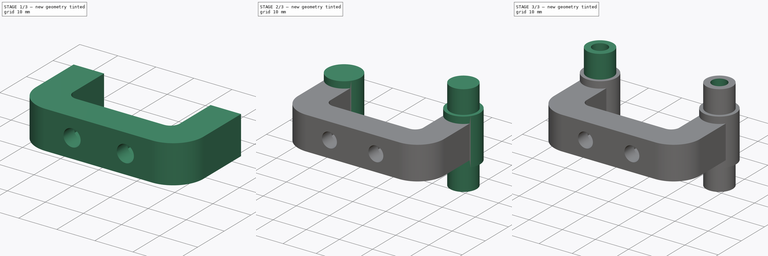
[diagram: build sequence overview — one tinted view per stage of 3, left to right]
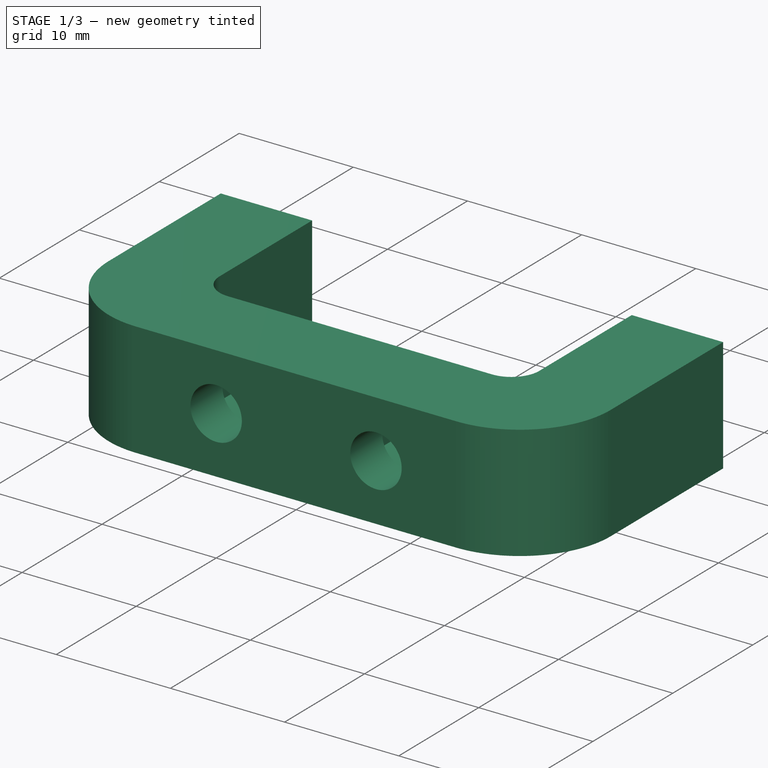
[diagram: stage 1 of 3 — iso view after this stage's code; geometry added in this stage tinted green]
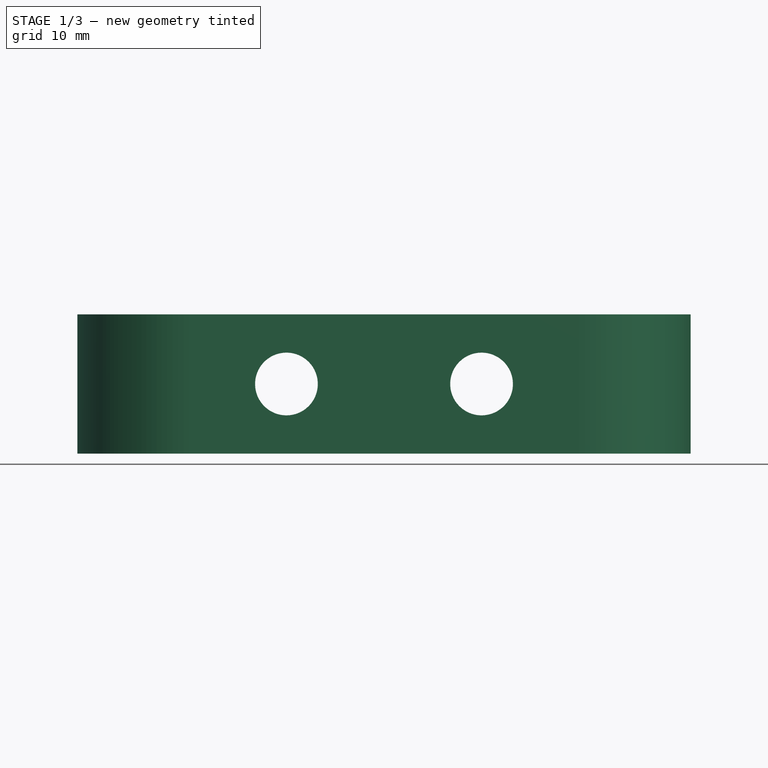
[diagram: stage 1 of 3 — front view after this stage's code; geometry added in this stage tinted green]
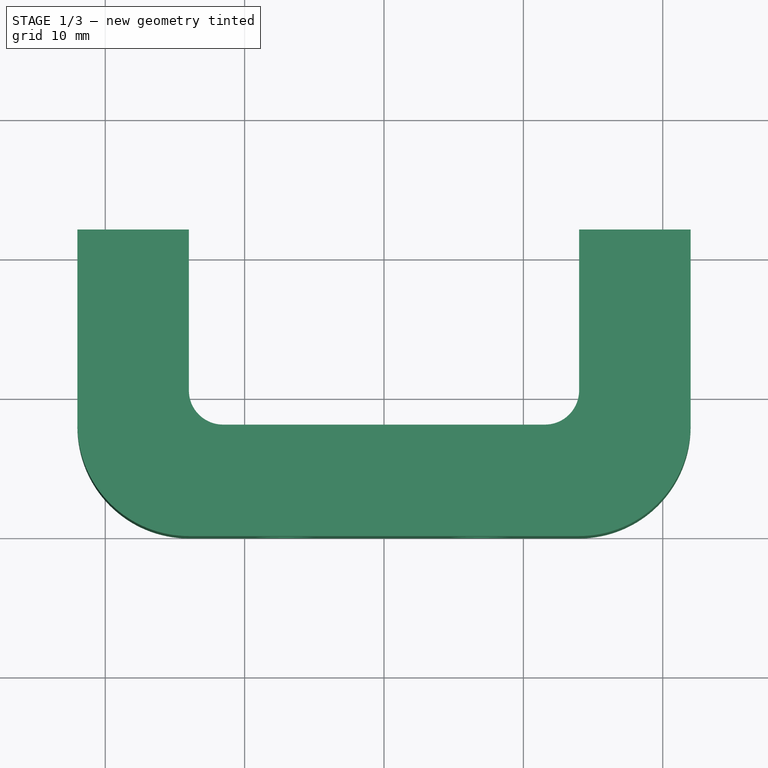
[diagram: stage 1 of 3 — top view after this stage's code; geometry added in this stage tinted green]
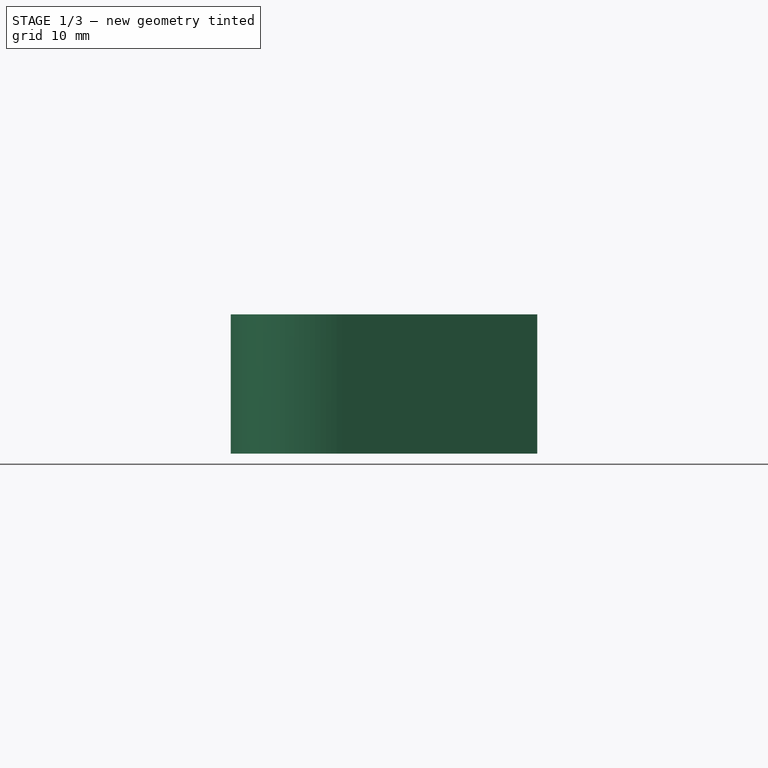
[diagram: stage 1 of 3 — right view after this stage's code; geometry added in this stage tinted green]
FCSTD DOCUMENT  (FreeCAD 1.0R38641 +678 (Git))
Label: side-connection-rod
License: All rights reserved
LicenseURL: https://en.wikipedia.org/wiki/All_rights_reserved
objects: Sketcher::SketchObject×8, PartDesign::Pad×5, PartDesign::Pocket×2, PartDesign::Hole×1, PartDesign::Body×1
note: 41 computed .brp shape members not serialized (recipe doc carries the construction recipe); baked Part::Feature solids carry a one-line shape summary decoded from their .brp

FEATURE [Sketcher::SketchObject] Sketch024
  ArcFitTolerance = 0
  AttachmentSupport = -> [XZ_Plane003]
  FullyConstrained = true
  MakeInternals = false
  MapMode = 5
  Placement = pos=(0,0,0) rot=(1,0,0;1.5708rad)
  sketch-geometry (6):
    g0: LineSegment StartX=12 StartY=49 StartZ=0 EndX=-12 EndY=49 EndZ=0
    g1: LineSegment StartX=-12 StartY=39 StartZ=0 EndX=12 EndY=39 EndZ=0
    g2: LineSegment StartX=-12 StartY=49 StartZ=0 EndX=-12 EndY=39 EndZ=0
    g3: LineSegment StartX=12 StartY=49 StartZ=0 EndX=12 EndY=39 EndZ=0
    g4: Circle CenterX=-7 CenterY=44 CenterZ=0 NormalX=0 NormalY=0 NormalZ=1 AngleXU=0 Radius=2.25
    g5: Circle CenterX=7 CenterY=44 CenterZ=0 NormalX=0 NormalY=0 NormalZ=1 AngleXU=0 Radius=2.25
  constraints (18):
    c: Horizontal(g0)
    c: Horizontal(g1)
    c: Coincident(g2,g0)
    c: Coincident(g2,g1)
    c: Vertical(g2)
    c: Coincident(g3,g0)
    c: Coincident(g3,g1)
    c: Vertical(g3)
    c: Diameter(g4) = 4.5
    c: Diameter(g5) = 4.5
    c: DistanceY(g3,g3) = 10
    c: DistanceX(g0,g0) = 24
    c: DistanceX(g-2,g4) = -7
    c: Distance(g4,g0) = 5
    c: DistanceX(g-2,g5) = 7
    c: Distance(g5,g0) = 5
    c: Distance(g-1,g2) = 12
    c: Distance(g-1,g1) = 39
FEATURE [PartDesign::Pad] Pad008
  Direction = (0,-1,2e-16)
  Length = 8
  Length2 = 10
  Placement = pos=(0,0,0) rot=(1,0,0;1.5708rad)
  Profile = -> Sketch024
  ReferenceAxis = -> Sketch024 [N_Axis]
  Reversed = true
  Suppressed = false
  Type = 0
FEATURE [Sketcher::SketchObject] Sketch025
  ArcFitTolerance = 0
  AttachmentSupport = -> [Pad008]
  FullyConstrained = true
  MakeInternals = false
  MapMode = 5
  Placement = pos=(0,2.16e-14,49) rot=(0,0,1;3.14159rad)
  sketch-geometry (18):
    g0: LineSegment StartX=-10 StartY=0 StartZ=0 EndX=-10 EndY=-8 EndZ=0
    g1: LineSegment StartX=-11.55 StartY=-8 StartZ=0 EndX=-10 EndY=-8 EndZ=0
    g2: LineSegment StartX=-10 StartY=0 StartZ=0 EndX=-14 EndY=0 EndZ=0
    g3: LineSegment StartX=-22 StartY=-8 StartZ=0 EndX=-22 EndY=-22 EndZ=0
    g4: LineSegment StartX=-14 StartY=-10.45 StartZ=0 EndX=-14 EndY=-22 EndZ=0
    g5: LineSegment StartX=-22 StartY=-22 StartZ=0 EndX=-14 EndY=-22 EndZ=0
    g6: ArcOfCircle CenterX=-14 CenterY=-8 CenterZ=0 NormalX=0 NormalY=0 NormalZ=1 AngleXU=0 Radius=8 StartAngle=1.5708 EndAngle=3.14159
    g7: ArcOfCircle CenterX=-11.55 CenterY=-10.45 CenterZ=0 NormalX=0 NormalY=0 NormalZ=1 AngleXU=0 Radius=2.45 StartAngle=1.5708 EndAngle=3.14159
    g8: LineSegment StartX=10 StartY=-8 StartZ=0 EndX=10 EndY=0 EndZ=0
    g9: LineSegment StartX=10 StartY=0 StartZ=0 EndX=14 EndY=0 EndZ=0
    g10: LineSegment StartX=10 StartY=-8 StartZ=0 EndX=11.55 EndY=-8 EndZ=0
    g11: LineSegment StartX=14 StartY=-10.45 StartZ=0 EndX=14 EndY=-22 EndZ=0
    g12: LineSegment StartX=22 StartY=-8 StartZ=0 EndX=22 EndY=-22 EndZ=0
    g13: LineSegment StartX=14 StartY=-22 StartZ=0 EndX=22 EndY=-22 EndZ=0
    g14: ArcOfCircle CenterX=14 CenterY=-8 CenterZ=0 NormalX=0 NormalY=0 NormalZ=1 AngleXU=0 Radius=8 StartAngle=0 EndAngle=1.5708
    g15: GeomPoint [constr] X=22 Y=0 Z=0
    g16: ArcOfCircle CenterX=11.55 CenterY=-10.45 CenterZ=0 NormalX=0 NormalY=0 NormalZ=1 AngleXU=0 Radius=2.45 StartAngle=0 EndAngle=1.5708
    g17: GeomPoint [constr] X=14 Y=-8 Z=0
  constraints (50):
    c: Vertical(g0)
    c: Coincident(g1,g0)
    c: Horizontal(g1)
    c: Horizontal(g5)
    c: Tangent(g1,g7) = 1.5708
    c: Tangent(g4,g7) = -1.5708
    c: DistanceY(g0,g0) = 8
    c: DistanceY(g3,g3) = 14
    c: Radius(g7) = 2.45
    c: PointOnObject(g8,g-1)
    c: Vertical(g8)
    c: Coincident(g9,g8)
    c: Coincident(g10,g8)
    c: Horizontal(g10)
    c: Vertical(g11)
    c: Vertical(g12)
    c: Equal(g8,g0)
    c: Coincident(g13,g11)
    c: Coincident(g13,g12)
    c: Horizontal(g13)
    c: Equal(g5,g13)
    c: PointOnObject(g15,g9)
    c: PointOnObject(g15,g12)
    c: Tangent(g9,g14) = 1.5708
    c: Tangent(g12,g14) = 1.5708
    c: Distance(g-1,g11) = 14
    c: Equal(g12,g3)
    c: Equal(g6,g14)
    c: PointOnObject(g17,g10)
    c: PointOnObject(g17,g11)
    c: Tangent(g10,g16) = 1.5708
    c: Tangent(g11,g16) = 1.5708
    c: Equal(g7,g16)
    c: Equal(g2,g9)
    c: PointOnObject(g2,g-1)
    c: Coincident(g6,g2)
    c: Coincident(g2,g0)
    c: PointOnObject(g0,g-1)
    c: Radius(g6) = 8
    c: PointOnObject(g9,g-1)
    c: DistanceX(g2,g2) = 4
    c: DistanceX(g5,g5) = 8
    c: Distance(g-1,g5) = 22
    c: Distance(g-1,g13) = 22
    c: DistanceX(g1,g1) = 1.55
    c: DistanceX(g-2,g7) = -11.55
    c: DistanceX(g-2,g6) = -14
    c: Coincident(g3,g6)
    c: Coincident(g3,g5)
    c: Coincident(g4,g5)
FEATURE [PartDesign::Pad] Pad009
  BaseFeature = -> Pad008
  Direction = (0,0,1)
  Length = 10
  Length2 = 10
  Placement = pos=(0,0,0) rot=(1,0,0;1.5708rad)
  Profile = -> Sketch025
  ReferenceAxis = -> Sketch025 [N_Axis]
  Reversed = true
  Suppressed = false
  Type = 0
FEATURE [Sketcher::SketchObject] Sketch026
  ArcFitTolerance = 0
  AttachmentSupport = -> [Pad009]
  FullyConstrained = true
  MakeInternals = false
  MapMode = 5
  Placement = pos=(0,8,0) rot=(-1,0,0;1.5708rad)
  sketch-geometry (14):
    g0: LineSegment StartX=-3.5359 StartY=-46 StartZ=0 EndX=-3.5359 EndY=-42 EndZ=0
    g1: LineSegment StartX=-3.5359 StartY=-42 StartZ=0 EndX=-7 EndY=-40 EndZ=0
    g2: LineSegment StartX=-7 StartY=-40 StartZ=0 EndX=-10.4641 EndY=-42 EndZ=0
    g3: LineSegment StartX=-10.4641 StartY=-42 StartZ=0 EndX=-10.4641 EndY=-46 EndZ=0
    g4: LineSegment StartX=-10.4641 StartY=-46 StartZ=0 EndX=-7 EndY=-48 EndZ=0
    g5: LineSegment StartX=-7 StartY=-48 StartZ=0 EndX=-3.5359 EndY=-46 EndZ=0
    g6: Circle [constr] CenterX=-7 CenterY=-44 CenterZ=0 NormalX=0 NormalY=0 NormalZ=1 AngleXU=0 Radius=4
    g7: LineSegment StartX=10.4641 StartY=-46 StartZ=0 EndX=10.4641 EndY=-42 EndZ=0
    g8: LineSegment StartX=10.4641 StartY=-42 StartZ=0 EndX=7 EndY=-40 EndZ=0
    g9: LineSegment StartX=7 StartY=-40 StartZ=0 EndX=3.5359 EndY=-42 EndZ=0
    g10: LineSegment StartX=3.5359 StartY=-42 StartZ=0 EndX=3.5359 EndY=-46 EndZ=0
    g11: LineSegment StartX=3.5359 StartY=-46 StartZ=0 EndX=7 EndY=-48 EndZ=0
    g12: LineSegment StartX=7 StartY=-48 StartZ=0 EndX=10.4641 EndY=-46 EndZ=0
    g13: Circle [constr] CenterX=7 CenterY=-44 CenterZ=0 NormalX=0 NormalY=0 NormalZ=1 AngleXU=0 Radius=4
  constraints (34):
    c: Coincident(g0,g1)
    c: Coincident(g1,g2)
    c: Coincident(g2,g3)
    c: Coincident(g3,g4)
    c: Coincident(g4,g5)
    c: Coincident(g5,g0)
    c: Equal(g0, g1-g5) x5
    c: PointOnObject(g0,g6)
    c: PointOnObject(g1,g6)
    c: PointOnObject(g2,g6)
    c: PointOnObject(g3,g6)
    c: PointOnObject(g4,g6)
    c: PointOnObject(g5,g6)
    c: Vertical(g0)
    c: Diameter(g6) = 8
    c: Coincident(g7,g8)
    c: Coincident(g8,g9)
    c: Coincident(g9,g10)
    c: Coincident(g10,g11)
    c: Coincident(g11,g12)
    c: Coincident(g12,g7)
    c: Equal(g7, g8-g12) x5
    c: PointOnObject(g7,g13)
    c: PointOnObject(g8,g13)
    c: PointOnObject(g9,g13)
    c: PointOnObject(g10,g13)
    c: PointOnObject(g11,g13)
    c: PointOnObject(g12,g13)
    c: Vertical(g10)
    c: Equal(g13,g6)
    c: DistanceX(g-2,g6) = -7
    c: DistanceX(g-2,g13) = 7
    c: DistanceY(g-1,g6) = -44
    c: DistanceY(g-1,g13) = -44
FEATURE [PartDesign::Pocket] Pocket
  BaseFeature = -> Pad009
  Direction = (0,-1,-2e-16)
  Length = 4
  Length2 = 5
  Placement = pos=(0,0,0) rot=(1,0,0;1.5708rad)
  Profile = -> Sketch026
  ReferenceAxis = -> Sketch026 [N_Axis]
  Suppressed = false
  Type = 0
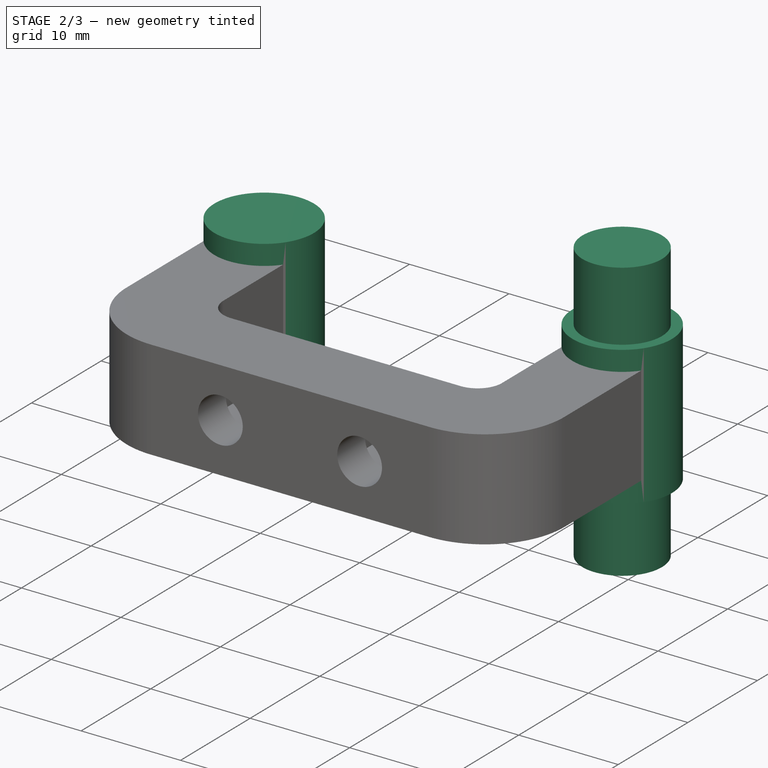
[diagram: stage 2 of 3 — iso view after this stage's code; geometry added in this stage tinted green]
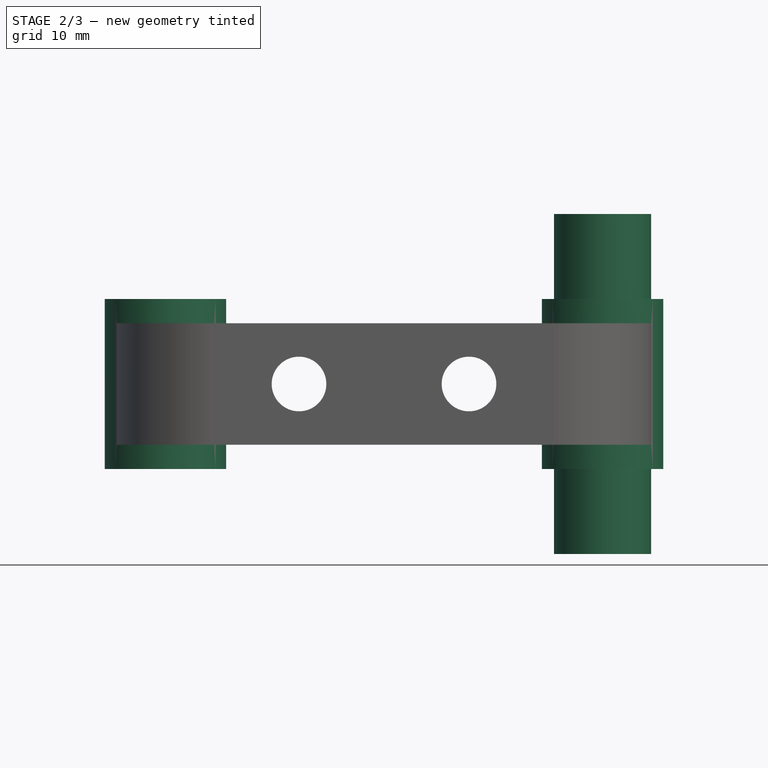
[diagram: stage 2 of 3 — front view after this stage's code; geometry added in this stage tinted green]
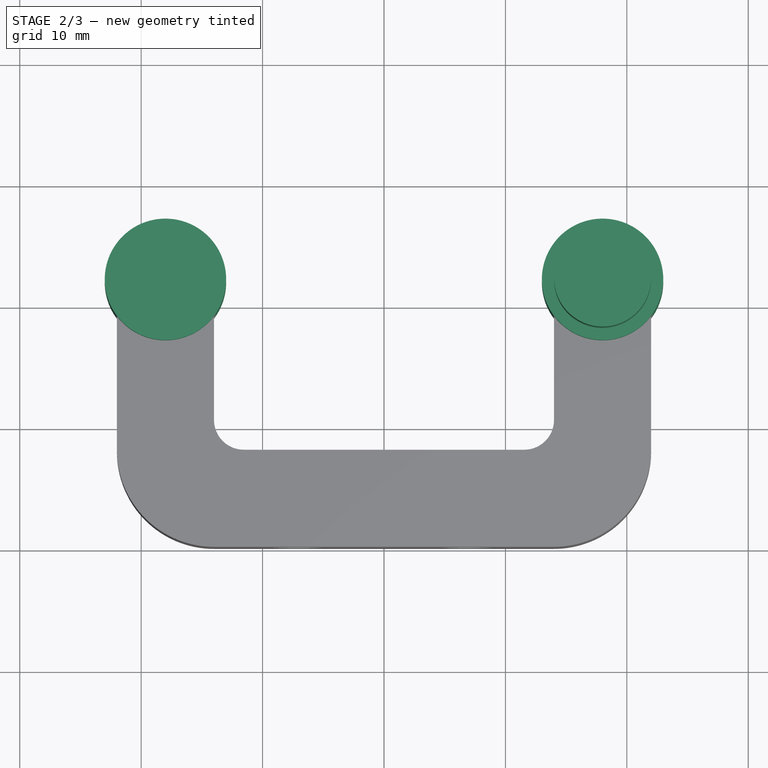
[diagram: stage 2 of 3 — top view after this stage's code; geometry added in this stage tinted green]
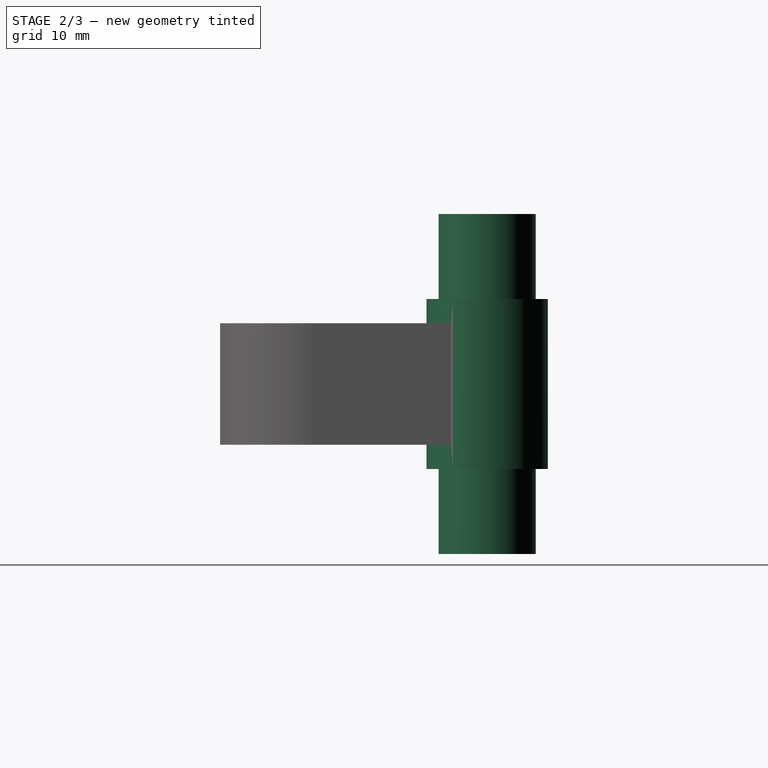
[diagram: stage 2 of 3 — right view after this stage's code; geometry added in this stage tinted green]
FEATURE [Sketcher::SketchObject] Sketch027
  ArcFitTolerance = 0
  AttachmentSupport = -> [Pocket]
  FullyConstrained = true
  MakeInternals = false
  MapMode = 5
  Placement = pos=(0,2.16e-14,49) rot=(0,0,1;3.14159rad)
  sketch-geometry (2):
    g0: Circle CenterX=-18 CenterY=-22 CenterZ=0 NormalX=0 NormalY=0 NormalZ=1 AngleXU=0 Radius=5
    g1: Circle CenterX=18 CenterY=-22 CenterZ=0 NormalX=0 NormalY=0 NormalZ=1 AngleXU=0 Radius=5
  constraints (6):
    c: Diameter(g0) = 10
    c: Equal(g0,g1)
    c: DistanceY(g-1,g0) = -22
    c: DistanceX(g-2,g0) = -18
    c: DistanceX(g-2,g1) = 18
    c: DistanceY(g-1,g1) = -22
FEATURE [PartDesign::Pad] Pad010
  BaseFeature = -> Pocket
  Direction = (0,0,1)
  Length = 2
  Length2 = 12
  Placement = pos=(0,0,0) rot=(1,0,0;1.5708rad)
  Profile = -> Sketch027
  ReferenceAxis = -> Sketch027 [N_Axis]
  Suppressed = false
  Type = 4
FEATURE [Sketcher::SketchObject] Sketch028
  ArcFitTolerance = 0
  AttachmentSupport = -> [Pad010]
  FullyConstrained = true
  MakeInternals = false
  MapMode = 5
  Placement = pos=(0,0,51) rot=(0,0,1;3.14159rad)
  sketch-geometry (1):
    g0: Circle CenterX=-18 CenterY=-22 CenterZ=0 NormalX=0 NormalY=0 NormalZ=1 AngleXU=0 Radius=4
  constraints (3):
    c: Diameter(g0) = 8
    c: DistanceX(g-2,g0) = -18
    c: DistanceY(g-1,g0) = -22
FEATURE [PartDesign::Pad] Pad011
  BaseFeature = -> Pad010
  Direction = (0,0,1)
  Length = 7
  Length2 = 21
  Placement = pos=(0,0,0) rot=(1,0,0;1.5708rad)
  Profile = -> Sketch028
  ReferenceAxis = -> Sketch028 [N_Axis]
  Suppressed = false
  Type = 4
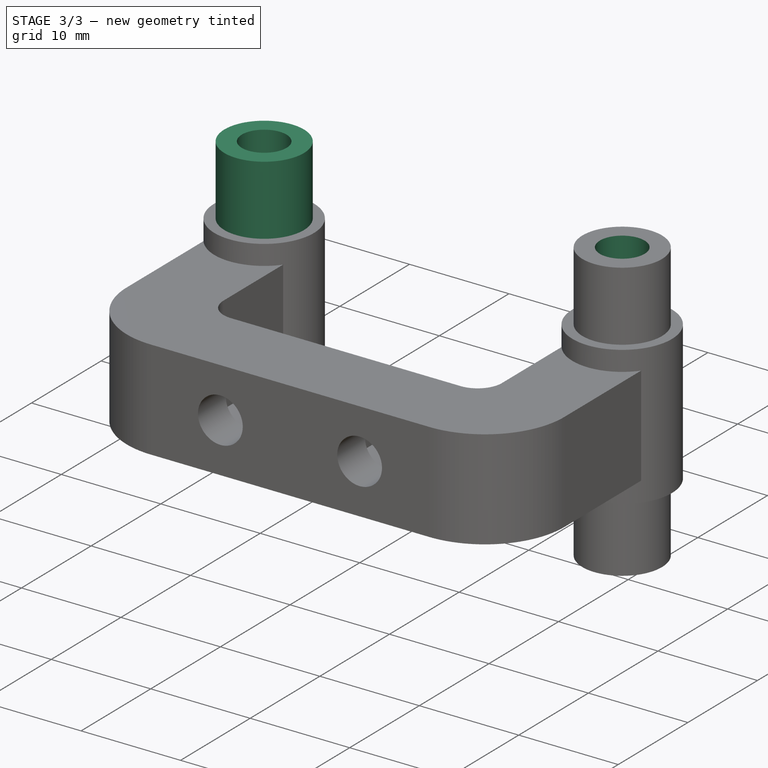
[diagram: stage 3 of 3 — iso view after this stage's code; geometry added in this stage tinted green]
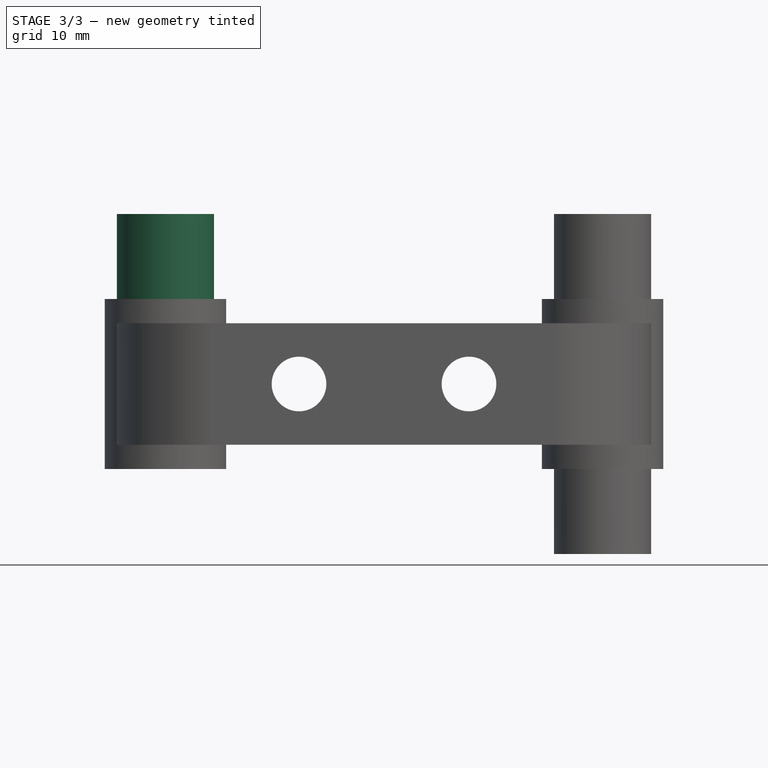
[diagram: stage 3 of 3 — front view after this stage's code; geometry added in this stage tinted green]
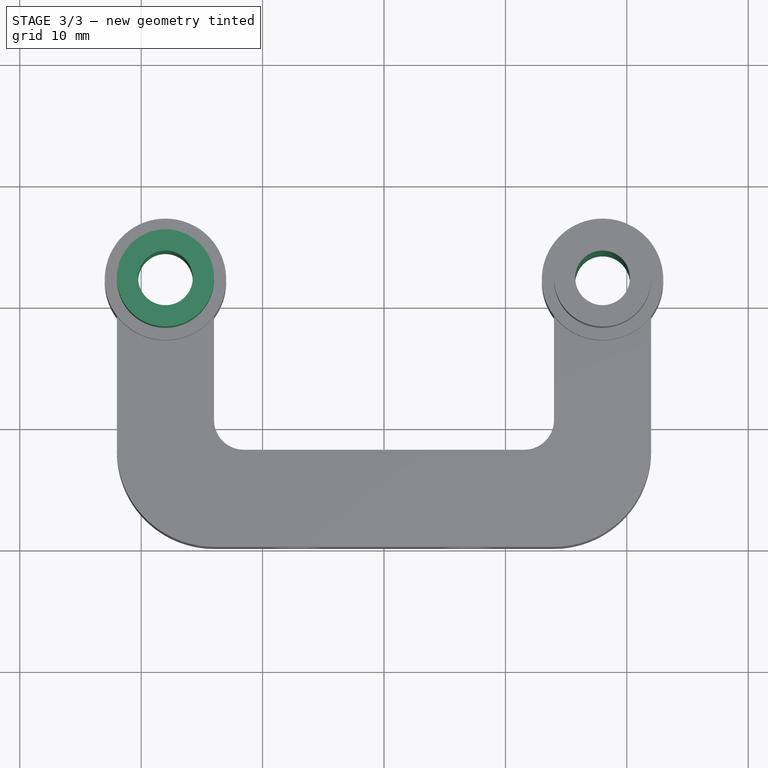
[diagram: stage 3 of 3 — top view after this stage's code; geometry added in this stage tinted green]
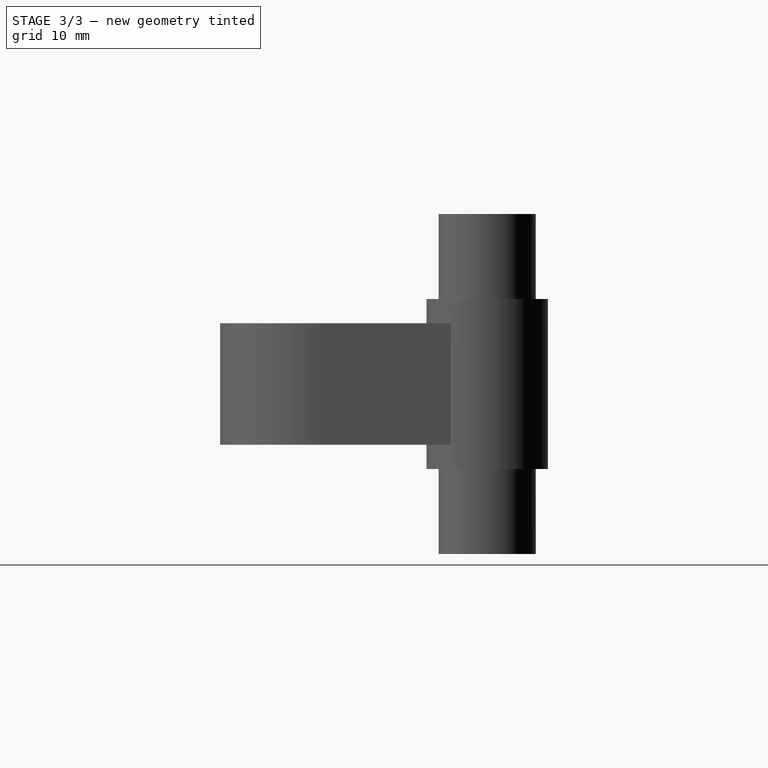
[diagram: stage 3 of 3 — right view after this stage's code; geometry added in this stage tinted green]
FEATURE [Sketcher::SketchObject] Sketch029
  ArcFitTolerance = 0
  AttachmentSupport = -> [Pad011]
  FullyConstrained = true
  MakeInternals = false
  MapMode = 5
  Placement = pos=(0,0,51) rot=(0,0,1;3.14159rad)
  sketch-geometry (1):
    g0: Circle CenterX=18 CenterY=-22 CenterZ=0 NormalX=0 NormalY=0 NormalZ=1 AngleXU=0 Radius=4
  constraints (3):
    c: Diameter(g0) = 8
    c: DistanceX(g-2,g0) = 18
    c: DistanceY(g-1,g0) = -22
FEATURE [PartDesign::Pad] Pad012
  BaseFeature = -> Pad011
  Direction = (0,0,1)
  Length = 7
  Length2 = 10
  Placement = pos=(0,0,0) rot=(1,0,0;1.5708rad)
  Profile = -> Sketch029
  ReferenceAxis = -> Sketch029 [N_Axis]
  Suppressed = false
  Type = 0
FEATURE [Sketcher::SketchObject] Sketch030
  ArcFitTolerance = 0
  AttachmentSupport = -> [Pad012]
  FullyConstrained = true
  MakeInternals = false
  MapMode = 5
  Placement = pos=(0,0,37) rot=(1,0,0;3.14159rad)
  sketch-geometry (7):
    g0: LineSegment StartX=-14.5359 StartY=-24 StartZ=0 EndX=-14.5359 EndY=-20 EndZ=0
    g1: LineSegment StartX=-14.5359 StartY=-20 StartZ=0 EndX=-18 EndY=-18 EndZ=0
    g2: LineSegment StartX=-18 StartY=-18 StartZ=0 EndX=-21.4641 EndY=-20 EndZ=0
    g3: LineSegment StartX=-21.4641 StartY=-20 StartZ=0 EndX=-21.4641 EndY=-24 EndZ=0
    g4: LineSegment StartX=-21.4641 StartY=-24 StartZ=0 EndX=-18 EndY=-26 EndZ=0
    g5: LineSegment StartX=-18 StartY=-26 StartZ=0 EndX=-14.5359 EndY=-24 EndZ=0
    g6: Circle [constr] CenterX=-18 CenterY=-22 CenterZ=0 NormalX=0 NormalY=0 NormalZ=1 AngleXU=0 Radius=4
  constraints (17):
    c: Coincident(g0,g1)
    c: Coincident(g1,g2)
    c: Coincident(g2,g3)
    c: Coincident(g3,g4)
    c: Coincident(g4,g5)
    c: Coincident(g5,g0)
    c: Equal(g0, g1-g5) x5
    c: PointOnObject(g0,g6)
    c: PointOnObject(g1,g6)
    c: PointOnObject(g2,g6)
    c: PointOnObject(g3,g6)
    c: PointOnObject(g4,g6)
    c: PointOnObject(g5,g6)
    c: Vertical(g0)
    c: Diameter(g6) = 8
    c: DistanceX(g-2,g6) = -18
    c: DistanceY(g-1,g6) = -22
FEATURE [PartDesign::Pocket] Pocket001
  BaseFeature = -> Pad012
  Direction = (0,0,1)
  Length = 4
  Length2 = 5
  Placement = pos=(0,0,0) rot=(1,0,0;1.5708rad)
  Profile = -> Sketch030
  ReferenceAxis = -> Sketch030 [N_Axis]
  Suppressed = false
  Type = 0
FEATURE [Sketcher::SketchObject] Sketch031
  ArcFitTolerance = 0
  AttachmentSupport = -> [Pocket001]
  FullyConstrained = true
  MakeInternals = false
  MapMode = 5
  Placement = pos=(0,0,58) rot=(0,0,1;3.14159rad)
  sketch-geometry (2):
    g0: Circle CenterX=18 CenterY=-22 CenterZ=0 NormalX=0 NormalY=0 NormalZ=1 AngleXU=0 Radius=2.25
    g1: Circle CenterX=-18 CenterY=-22 CenterZ=0 NormalX=0 NormalY=0 NormalZ=1 AngleXU=0 Radius=2.25
  constraints (6):
    c: Diameter(g1) = 4.5
    c: DistanceX(g-2,g1) = -18
    c: DistanceY(g-1,g1) = -22
    c: DistanceX(g-2,g0) = 18
    c: Equal(g1,g0)
    c: DistanceY(g-1,g0) = -22
FEATURE [PartDesign::Hole] Hole001
  BaseFeature = -> Pocket001
  CustomThreadClearance = 0
  Depth = 50
  DepthType = 0
  Diameter = 4.5
  DrillForDepth = false
  DrillPoint = 1
  DrillPointAngle = 118
  HoleCutCountersinkAngle = 90
  HoleCutCustomValues = false
  HoleCutDepth = 0
  HoleCutDiameter = 6.1
  HoleCutType = 0
  ModelThread = false
  Placement = pos=(0,0,0) rot=(1,0,0;1.5708rad)
  Profile = -> Sketch031
  Suppressed = false
  Tapered = false
  TaperedAngle = 90
  ThreadClass = 0
  ThreadDepth = 50
  ThreadDepthType = 0
  ThreadDirection = 0
  ThreadFit = 0
  ThreadSize = 0
  ThreadType = 0
  Threaded = false
  UseCustomThreadClearance = false
FEATURE [PartDesign::Body] Body003  label="side-connecting-rod"
  AllowCompound = false
  Group = -> [Sketch024,Pad008,Sketch025,Pad009,Sketch026,Pocket,Sketch027,Pad010,Sketch028,Pad011,Sketch029,Pad012,Sketch030,Pocket001,Sketch031,Hole001]
  Origin = -> Origin003
  Placement = pos=(18,169,-23) rot=(0,0,1;3.14159rad)
  Tip = -> Hole001
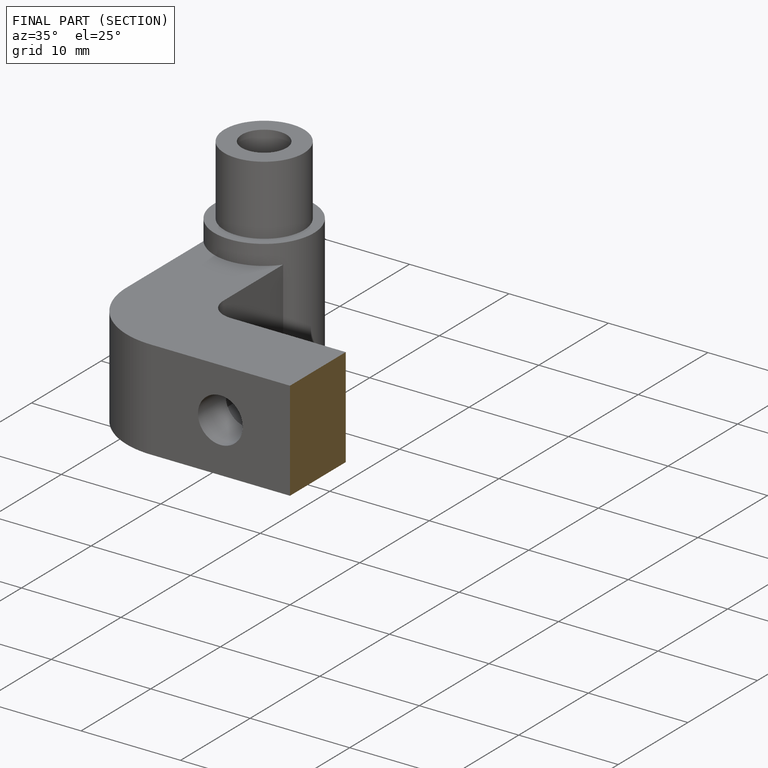
[diagram: finished part — half-section view (interior)]
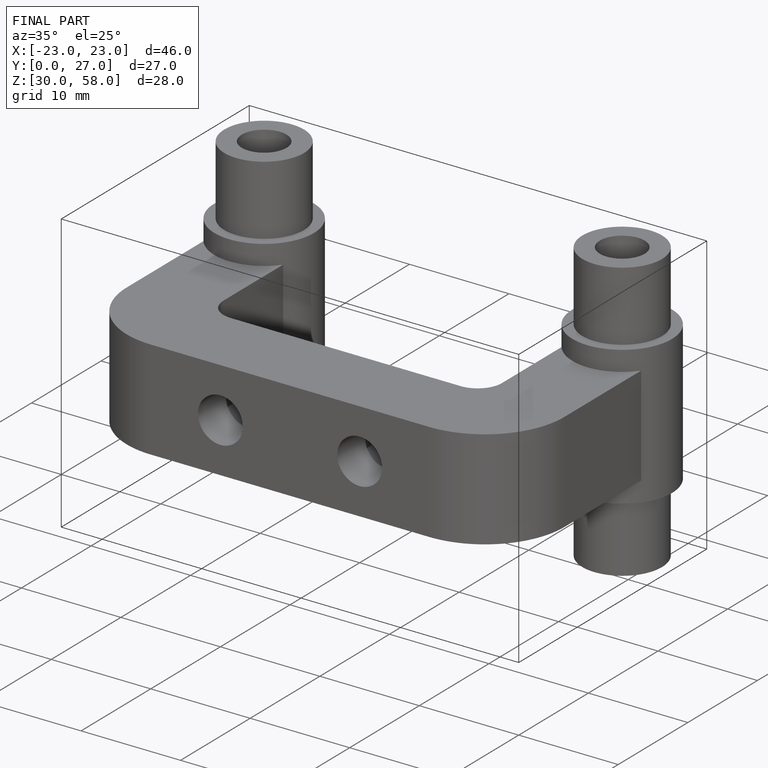
[diagram: finished part — iso view with bounding-box wireframe]
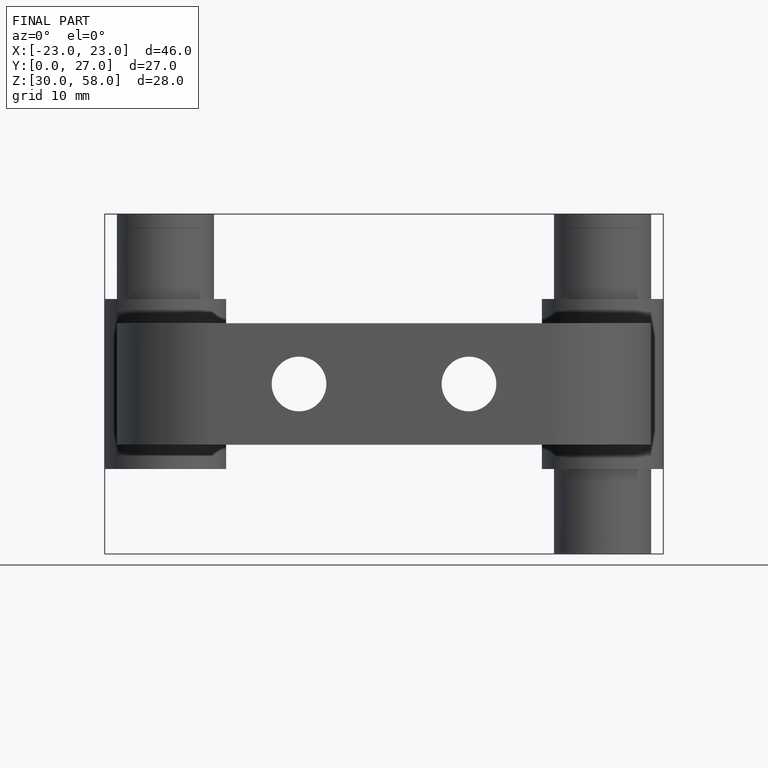
[diagram: finished part — front view with bounding-box wireframe]
